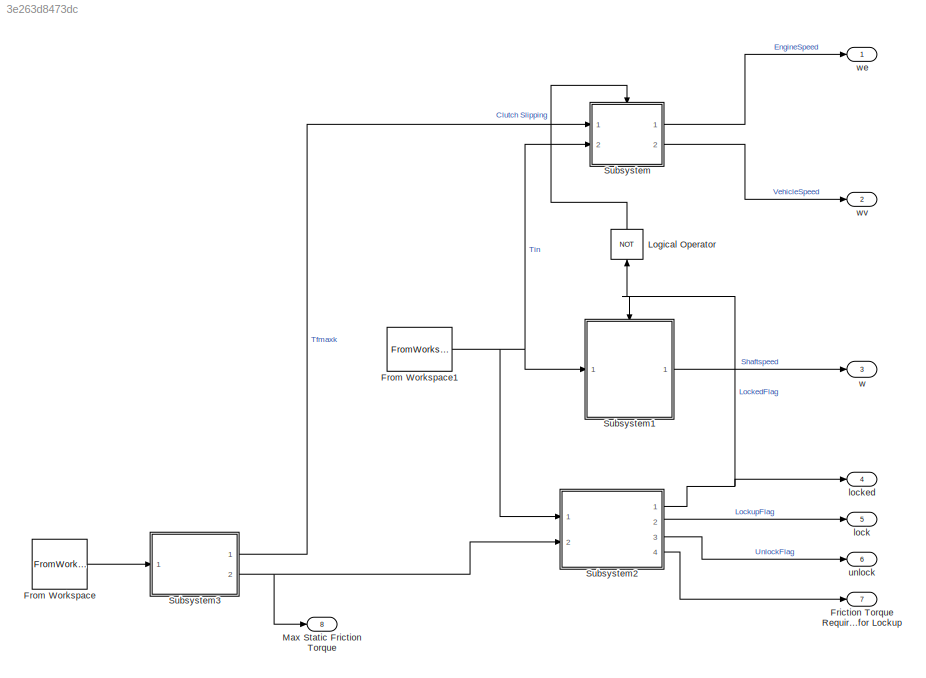
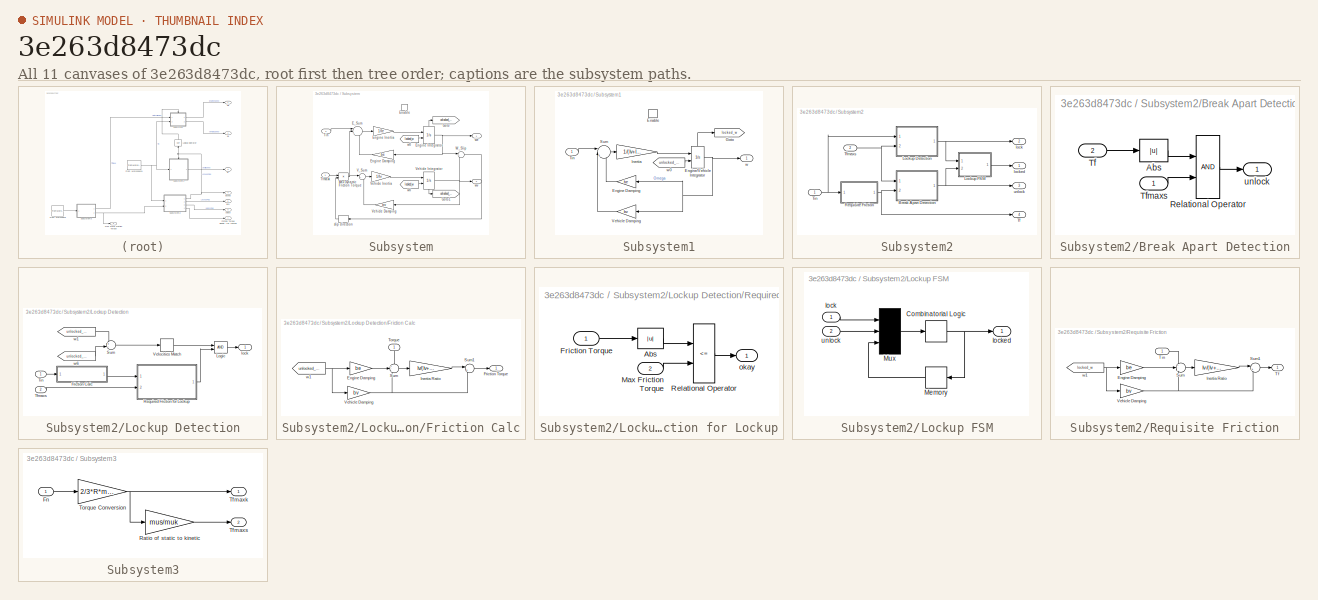
[diagram: thumbnail index - all 11 canvases of the model, root first then tree order]
MODEL slx_3e263d8473dc
KIND model
CONFIG AbsTol = auto
CONFIG EnableMultiTasking = off
CONFIG FixedStep = auto
CONFIG MaxStep = auto
CONFIG MinStep = auto
CONFIG RelTol = 1e-3
CONFIG SampleTimeConstraint = Unconstrained
CONFIG SolverName = VariableStepAuto
CONFIG StartTime = 0.0
CONFIG StopTime = 10.0
BLOCK [Outport] Friction Torque Required for Lockup
  InitialOutput = 0
  Port = 7
  VectorParamsAs1DForOutWhenUnconnected = off
BLOCK [FromWorkspace] From Workspace
  VariableName = Fn
  ZeroCross = off
BLOCK [FromWorkspace] From Workspace1
  VariableName = Tin
  ZeroCross = off
BLOCK [Logic] Logical Operator
  AllPortsSameDT = off
  IconShape = distinctive
  NameLocation = right
  Operator = NOT
  OutDataTypeStr = boolean
  Ports = [1, 1]
BLOCK [Outport] Max Static Friction Torque
  Port = 8
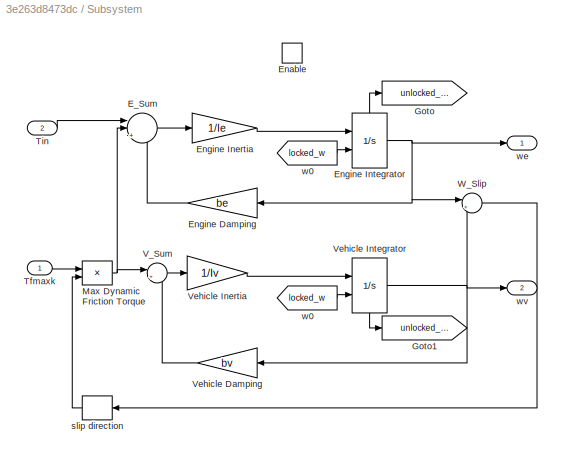
BLOCK [SubSystem] Subsystem
  Ports = [2, 2, 1]
  RequestExecContextInheritance = off
BLOCK [Sum] Subsystem/E_Sum
  InputSameDT = on
  Inputs = ||+--
  NameLocation = top
  OutDataTypeStr = Inherit: Same as first input
  Ports = [3, 1]
  SaturateOnIntegerOverflow = on
BLOCK [EnablePort] Subsystem/Enable
  Ports = []
  StatesWhenEnabling = reset
BLOCK [Gain] Subsystem/Engine Damping
  Gain = be
  OutDataTypeStr = Inherit: Same as input
  ParamDataTypeStr = Inherit: Same as input
  SaturateOnIntegerOverflow = on
BLOCK [Gain] Subsystem/Engine Inertia
  Gain = 1/Ie
  OutDataTypeStr = Inherit: Same as input
  ParamDataTypeStr = Inherit: Same as input
  SaturateOnIntegerOverflow = on
BLOCK [Integrator] Subsystem/Engine Integrator
  InitialConditionSource = external
  Ports = [2, 1, 0, 0, 1]
  ShowStatePort = on
BLOCK [Goto] Subsystem/Goto
  GotoTag = unlocked_we
  TagVisibility = global
BLOCK [Goto] Subsystem/Goto1
  GotoTag = unlocked_wv
  TagVisibility = global
BLOCK [Product] Subsystem/Max Dynamic Friction Torque
  InputSameDT = on
  OutDataTypeStr = Inherit: Same as first input
  Ports = [2, 1]
  RndMeth = Zero
  SaturateOnIntegerOverflow = on
BLOCK [Inport] Subsystem/Tfmaxk
BLOCK [Inport] Subsystem/Tin
  Port = 2
BLOCK [Sum] Subsystem/V_Sum
  InputSameDT = on
  Inputs = |+-
  NameLocation = top
  OutDataTypeStr = Inherit: Same as first input
  Ports = [2, 1]
  SaturateOnIntegerOverflow = on
BLOCK [Gain] Subsystem/Vehicle Damping
  Gain = bv
  OutDataTypeStr = Inherit: Same as input
  ParamDataTypeStr = Inherit: Same as input
  SaturateOnIntegerOverflow = on
BLOCK [Gain] Subsystem/Vehicle Inertia
  Gain = 1/Iv
  OutDataTypeStr = Inherit: Same as input
  ParamDataTypeStr = Inherit: Same as input
  SaturateOnIntegerOverflow = on
BLOCK [Integrator] Subsystem/Vehicle Integrator
  InitialConditionSource = external
  NameLocation = top
  Ports = [2, 1, 0, 0, 1]
  ShowStatePort = on
BLOCK [Sum] Subsystem/W_Slip
  InputSameDT = on
  Inputs = |+-
  NameLocation = top
  OutDataTypeStr = Inherit: Same as first input
  Ports = [2, 1]
  SaturateOnIntegerOverflow = on
BLOCK [Signum] Subsystem/slip direction
BLOCK [From] Subsystem/w0
  GotoTag = locked_w
  TagVisibility = global
BLOCK [From] Subsystem/w0 
  GotoTag = locked_w
  TagVisibility = global
BLOCK [Outport] Subsystem/we
  InitialOutput = 0
  VectorParamsAs1DForOutWhenUnconnected = off
BLOCK [Outport] Subsystem/wv
  InitialOutput = 0
  Port = 2
  VectorParamsAs1DForOutWhenUnconnected = off
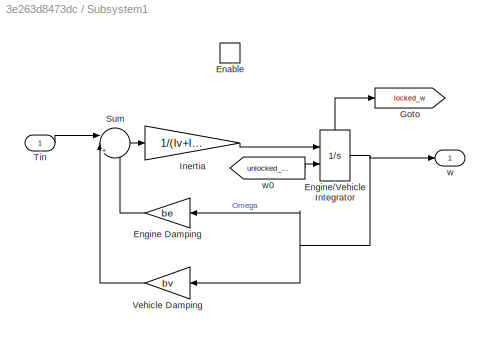
BLOCK [SubSystem] Subsystem1
  Ports = [1, 1, 1]
  RequestExecContextInheritance = off
BLOCK [EnablePort] Subsystem1/Enable
  Ports = []
  StatesWhenEnabling = reset
BLOCK [Gain] Subsystem1/Engine Damping
  Gain = be
  OutDataTypeStr = Inherit: Same as input
  ParamDataTypeStr = Inherit: Same as input
  SaturateOnIntegerOverflow = on
BLOCK [Integrator] Subsystem1/Engine//Vehicle Integrator
  InitialConditionSource = external
  Ports = [2, 1, 0, 0, 1]
  ShowStatePort = on
BLOCK [Goto] Subsystem1/Goto
  GotoTag = locked_w
  NameLocation = top
  TagVisibility = global
BLOCK [Gain] Subsystem1/Inertia
  Gain = 1/(Iv+Ie)
  OutDataTypeStr = Inherit: Same as input
  ParamDataTypeStr = Inherit: Same as input
  SaturateOnIntegerOverflow = on
BLOCK [Sum] Subsystem1/Sum
  InputSameDT = on
  Inputs = ||+--
  OutDataTypeStr = Inherit: Same as first input
  Ports = [3, 1]
  SaturateOnIntegerOverflow = on
BLOCK [Inport] Subsystem1/Tin
BLOCK [Gain] Subsystem1/Vehicle Damping
  Gain = bv
  OutDataTypeStr = Inherit: Same as input
  ParamDataTypeStr = Inherit: Same as input
  SaturateOnIntegerOverflow = on
BLOCK [Outport] Subsystem1/w
  InitialOutput = 0
  VectorParamsAs1DForOutWhenUnconnected = off
BLOCK [From] Subsystem1/w0
  GotoTag = unlocked_we
  TagVisibility = global
BLOCK [SubSystem] Subsystem2
  Ports = [2, 4]
  RequestExecContextInheritance = off
BLOCK [SubSystem] Subsystem2/Break Apart Detection
  Ports = [2, 1]
  RequestExecContextInheritance = off
BLOCK [Abs] Subsystem2/Break Apart Detection/Abs
BLOCK [RelationalOperator] Subsystem2/Break Apart Detection/Relational Operator
  OutDataTypeStr = boolean
  Ports = [2, 1]
BLOCK [Inport] Subsystem2/Break Apart Detection/Tf
  Port = 2
BLOCK [Inport] Subsystem2/Break Apart Detection/Tfmaxs
BLOCK [Outport] Subsystem2/Break Apart Detection/unlock
  InitialOutput = 0
  VectorParamsAs1DForOutWhenUnconnected = off
BLOCK [SubSystem] Subsystem2/Lockup Detection
  Ports = [2, 1]
  RequestExecContextInheritance = off
BLOCK [SubSystem] Subsystem2/Lockup Detection/Friction Calc
  Ports = [1, 1]
  RequestExecContextInheritance = off
BLOCK [Gain] Subsystem2/Lockup Detection/Friction Calc/Engine Damping
  Gain = be
  NameLocation = top
  OutDataTypeStr = Inherit: Same as input
  ParamDataTypeStr = Inherit: Same as input
  SaturateOnIntegerOverflow = on
BLOCK [Outport] Subsystem2/Lockup Detection/Friction Calc/Friction Torque
  InitialOutput = 0
  VectorParamsAs1DForOutWhenUnconnected = off
BLOCK [Gain] Subsystem2/Lockup Detection/Friction Calc/Inertia Ratio
  Gain = Iv/(Iv+Ie)
  OutDataTypeStr = Inherit: Same as input
  ParamDataTypeStr = Inherit: Same as input
  SaturateOnIntegerOverflow = on
BLOCK [Sum] Subsystem2/Lockup Detection/Friction Calc/Sum
  InputSameDT = on
  Inputs = +--
  OutDataTypeStr = Inherit: Same as first input
  Ports = [3, 1]
  SaturateOnIntegerOverflow = on
BLOCK [Sum] Subsystem2/Lockup Detection/Friction Calc/Sum1
  InputSameDT = on
  Inputs = |++
  OutDataTypeStr = Inherit: Same as first input
  Ports = [2, 1]
  SaturateOnIntegerOverflow = on
BLOCK [Inport] Subsystem2/Lockup Detection/Friction Calc/Torque
  NameLocation = left
BLOCK [Gain] Subsystem2/Lockup Detection/Friction Calc/Vehicle Damping
  Gain = bv
  OutDataTypeStr = Inherit: Same as input
  ParamDataTypeStr = Inherit: Same as input
  SaturateOnIntegerOverflow = on
BLOCK [From] Subsystem2/Lockup Detection/Friction Calc/w1
  GotoTag = unlocked_we
  TagVisibility = global
BLOCK [Logic] Subsystem2/Lockup Detection/Logic
  AttributesFormatString = (%<Operator>)
  IconShape = distinctive
  OutDataTypeStr = boolean
  Ports = [2, 1]
BLOCK [SubSystem] Subsystem2/Lockup Detection/Required Friction for Lockup
  Ports = [2, 1]
  RequestExecContextInheritance = off
BLOCK [Abs] Subsystem2/Lockup Detection/Required Friction for Lockup/Abs
BLOCK [Inport] Subsystem2/Lockup Detection/Required Friction for Lockup/Friction Torque
BLOCK [Inport] Subsystem2/Lockup Detection/Required Friction for Lockup/Max Friction Torque
  Port = 2
BLOCK [RelationalOperator] Subsystem2/Lockup Detection/Required Friction for Lockup/Relational Operator
  Operator = <=
  OutDataTypeStr = boolean
  Ports = [2, 1]
BLOCK [Outport] Subsystem2/Lockup Detection/Required Friction for Lockup/okay
  InitialOutput = 0
  VectorParamsAs1DForOutWhenUnconnected = off
BLOCK [Sum] Subsystem2/Lockup Detection/Sum
  InputSameDT = on
  Inputs = +-
  OutDataTypeStr = Inherit: Same as first input
  Ports = [2, 1]
  SaturateOnIntegerOverflow = on
BLOCK [Inport] Subsystem2/Lockup Detection/Tfmaxs
  Port = 2
BLOCK [Inport] Subsystem2/Lockup Detection/Tin
BLOCK [HitCross] Subsystem2/Lockup Detection/Velocities Match
  Ports = [1, 1]
BLOCK [Outport] Subsystem2/Lockup Detection/lock
  InitialOutput = 0
  VectorParamsAs1DForOutWhenUnconnected = off
BLOCK [From] Subsystem2/Lockup Detection/w1
  GotoTag = unlocked_we
  TagVisibility = global
BLOCK [From] Subsystem2/Lockup Detection/w6
  GotoTag = unlocked_wv
  TagVisibility = global
BLOCK [SubSystem] Subsystem2/Lockup FSM
  Ports = [2, 1]
  RequestExecContextInheritance = off
BLOCK [CombinatorialLogic] Subsystem2/Lockup FSM/Combinatorial Logic
  TruthTable = [0;1;0;0;1;1;1;0]
BLOCK [Memory] Subsystem2/Lockup FSM/Memory
BLOCK [Mux] Subsystem2/Lockup FSM/Mux
  Inputs = 3
  Ports = [3, 1]
BLOCK [Inport] Subsystem2/Lockup FSM/lock
  NameLocation = top
BLOCK [Outport] Subsystem2/Lockup FSM/locked
  InitialOutput = 0
  VectorParamsAs1DForOutWhenUnconnected = off
BLOCK [Inport] Subsystem2/Lockup FSM/unlock
  Port = 2
BLOCK [SubSystem] Subsystem2/Requisite Friction
  Ports = [1, 1]
  RequestExecContextInheritance = off
BLOCK [Gain] Subsystem2/Requisite Friction/Engine Damping
  Gain = be
  NameLocation = top
  OutDataTypeStr = Inherit: Same as input
  ParamDataTypeStr = Inherit: Same as input
  SaturateOnIntegerOverflow = on
BLOCK [Gain] Subsystem2/Requisite Friction/Inertia Ratio
  Gain = Iv/(Iv+Ie)
  OutDataTypeStr = Inherit: Same as input
  ParamDataTypeStr = Inherit: Same as input
  SaturateOnIntegerOverflow = on
BLOCK [Sum] Subsystem2/Requisite Friction/Sum
  InputSameDT = on
  Inputs = +--
  OutDataTypeStr = Inherit: Same as first input
  Ports = [3, 1]
  SaturateOnIntegerOverflow = on
BLOCK [Sum] Subsystem2/Requisite Friction/Sum1
  InputSameDT = on
  Inputs = |++
  OutDataTypeStr = Inherit: Same as first input
  Ports = [2, 1]
  SaturateOnIntegerOverflow = on
BLOCK [Outport] Subsystem2/Requisite Friction/Tf
  InitialOutput = 0
  VectorParamsAs1DForOutWhenUnconnected = off
BLOCK [Inport] Subsystem2/Requisite Friction/Tin
BLOCK [Gain] Subsystem2/Requisite Friction/Vehicle Damping
  Gain = bv
  OutDataTypeStr = Inherit: Same as input
  ParamDataTypeStr = Inherit: Same as input
  SaturateOnIntegerOverflow = on
BLOCK [From] Subsystem2/Requisite Friction/w1
  GotoTag = locked_w
  NameLocation = top
  TagVisibility = global
BLOCK [Outport] Subsystem2/Tf
  InitialOutput = 0
  Port = 4
  VectorParamsAs1DForOutWhenUnconnected = off
BLOCK [Inport] Subsystem2/Tfmaxs
  Port = 2
BLOCK [Inport] Subsystem2/Tin
BLOCK [Outport] Subsystem2/lock
  InitialOutput = 0
  Port = 2
  VectorParamsAs1DForOutWhenUnconnected = off
BLOCK [Outport] Subsystem2/locked
  InitialOutput = 0
  VectorParamsAs1DForOutWhenUnconnected = off
BLOCK [Outport] Subsystem2/unlock
  InitialOutput = 0
  Port = 3
  VectorParamsAs1DForOutWhenUnconnected = off
BLOCK [SubSystem] Subsystem3
  Ports = [1, 2]
  RequestExecContextInheritance = off
BLOCK [Inport] Subsystem3/Fn
BLOCK [Gain] Subsystem3/Ratio of static to kinetic
  Gain = mus/muk
  OutDataTypeStr = Inherit: Same as input
  ParamDataTypeStr = Inherit: Same as input
  SaturateOnIntegerOverflow = on
BLOCK [Outport] Subsystem3/Tfmaxk
  InitialOutput = 0
  VectorParamsAs1DForOutWhenUnconnected = off
BLOCK [Outport] Subsystem3/Tfmaxs
  InitialOutput = 0
  Port = 2
  VectorParamsAs1DForOutWhenUnconnected = off
BLOCK [Gain] Subsystem3/Torque Conversion
  Gain = 2/3*R*muk
  OutDataTypeStr = Inherit: Same as input
  ParamDataTypeStr = Inherit: Same as input
  SaturateOnIntegerOverflow = on
BLOCK [Outport] lock
  InitialOutput = 0
  Port = 5
  VectorParamsAs1DForOutWhenUnconnected = off
BLOCK [Outport] locked
  InitialOutput = 0
  Port = 4
  VectorParamsAs1DForOutWhenUnconnected = off
BLOCK [Outport] unlock
  InitialOutput = 0
  Port = 6
  VectorParamsAs1DForOutWhenUnconnected = off
BLOCK [Outport] w
  InitialOutput = 0
  Port = 3
  VectorParamsAs1DForOutWhenUnconnected = off
BLOCK [Outport] we
  InitialOutput = 0
  VectorParamsAs1DForOutWhenUnconnected = off
BLOCK [Outport] wv
  InitialOutput = 0
  Port = 2
  VectorParamsAs1DForOutWhenUnconnected = off
NET From Workspace1:1 -> Subsystem1:1, Subsystem2:1, Subsystem:2
LINE From Workspace:1 -> Subsystem3:1
LINE Logical Operator:1 -> Subsystem:enable
LINE Subsystem/E_Sum:1 -> Subsystem/Engine Inertia:1
LINE Subsystem/Engine Damping:1 -> Subsystem/E_Sum:3
LINE Subsystem/Engine Inertia:1 -> Subsystem/Engine Integrator:1
NET Subsystem/Engine Integrator:1 -> Subsystem/Engine Damping:1, Subsystem/W_Slip:1, Subsystem/we:1
LINE Subsystem/Engine Integrator:state -> Subsystem/Goto:1
NET Subsystem/Max Dynamic Friction Torque:1 -> Subsystem/E_Sum:2, Subsystem/V_Sum:1
LINE Subsystem/Tfmaxk:1 -> Subsystem/Max Dynamic Friction Torque:1
LINE Subsystem/Tin:1 -> Subsystem/E_Sum:1
LINE Subsystem/V_Sum:1 -> Subsystem/Vehicle Inertia:1
LINE Subsystem/Vehicle Damping:1 -> Subsystem/V_Sum:2
LINE Subsystem/Vehicle Inertia:1 -> Subsystem/Vehicle Integrator:1
NET Subsystem/Vehicle Integrator:1 -> Subsystem/Vehicle Damping:1, Subsystem/W_Slip:2, Subsystem/wv:1
LINE Subsystem/Vehicle Integrator:state -> Subsystem/Goto1:1
LINE Subsystem/W_Slip:1 -> Subsystem/slip direction:1
LINE Subsystem/slip direction:1 -> Subsystem/Max Dynamic Friction Torque:2
LINE Subsystem/w0 :1 -> Subsystem/Engine Integrator:2
LINE Subsystem/w0:1 -> Subsystem/Vehicle Integrator:2
LINE Subsystem1/Engine Damping:1 -> Subsystem1/Sum:3
NET Subsystem1/Engine//Vehicle Integrator:1 -> Subsystem1/Engine Damping:1, Subsystem1/Vehicle Damping:1, Subsystem1/w:1
LINE Subsystem1/Engine//Vehicle Integrator:state -> Subsystem1/Goto:1
LINE Subsystem1/Inertia:1 -> Subsystem1/Engine//Vehicle Integrator:1
LINE Subsystem1/Sum:1 -> Subsystem1/Inertia:1
LINE Subsystem1/Tin:1 -> Subsystem1/Sum:1
LINE Subsystem1/Vehicle Damping:1 -> Subsystem1/Sum:2
LINE Subsystem1/w0:1 -> Subsystem1/Engine//Vehicle Integrator:2
LINE Subsystem1:1 -> w:1
LINE Subsystem2/Break Apart Detection/Abs:1 -> Subsystem2/Break Apart Detection/Relational Operator:1
LINE Subsystem2/Break Apart Detection/Relational Operator:1 -> Subsystem2/Break Apart Detection/unlock:1
LINE Subsystem2/Break Apart Detection/Tf:1 -> Subsystem2/Break Apart Detection/Abs:1
LINE Subsystem2/Break Apart Detection/Tfmaxs:1 -> Subsystem2/Break Apart Detection/Relational Operator:2
NET Subsystem2/Break Apart Detection:1 -> Subsystem2/Lockup FSM:2, Subsystem2/unlock:1
LINE Subsystem2/Lockup Detection/Friction Calc/Engine Damping:1 -> Subsystem2/Lockup Detection/Friction Calc/Sum:2
LINE Subsystem2/Lockup Detection/Friction Calc/Inertia Ratio:1 -> Subsystem2/Lockup Detection/Friction Calc/Sum1:1
LINE Subsystem2/Lockup Detection/Friction Calc/Sum1:1 -> Subsystem2/Lockup Detection/Friction Calc/Friction Torque:1
LINE Subsystem2/Lockup Detection/Friction Calc/Sum:1 -> Subsystem2/Lockup Detection/Friction Calc/Inertia Ratio:1
LINE Subsystem2/Lockup Detection/Friction Calc/Torque:1 -> Subsystem2/Lockup Detection/Friction Calc/Sum:1
NET Subsystem2/Lockup Detection/Friction Calc/Vehicle Damping:1 -> Subsystem2/Lockup Detection/Friction Calc/Sum1:2, Subsystem2/Lockup Detection/Friction Calc/Sum:3
NET Subsystem2/Lockup Detection/Friction Calc/w1:1 -> Subsystem2/Lockup Detection/Friction Calc/Engine Damping:1, Subsystem2/Lockup Detection/Friction Calc/Vehicle Damping:1
LINE Subsystem2/Lockup Detection/Friction Calc:1 -> Subsystem2/Lockup Detection/Required Friction for Lockup:1
LINE Subsystem2/Lockup Detection/Logic:1 -> Subsystem2/Lockup Detection/lock:1
LINE Subsystem2/Lockup Detection/Required Friction for Lockup/Abs:1 -> Subsystem2/Lockup Detection/Required Friction for Lockup/Relational Operator:1
LINE Subsystem2/Lockup Detection/Required Friction for Lockup/Friction Torque:1 -> Subsystem2/Lockup Detection/Required Friction for Lockup/Abs:1
LINE Subsystem2/Lockup Detection/Required Friction for Lockup/Max Friction Torque:1 -> Subsystem2/Lockup Detection/Required Friction for Lockup/Relational Operator:2
LINE Subsystem2/Lockup Detection/Required Friction for Lockup/Relational Operator:1 -> Subsystem2/Lockup Detection/Required Friction for Lockup/okay:1
LINE Subsystem2/Lockup Detection/Required Friction for Lockup:1 -> Subsystem2/Lockup Detection/Logic:2
LINE Subsystem2/Lockup Detection/Sum:1 -> Subsystem2/Lockup Detection/Velocities Match:1
LINE Subsystem2/Lockup Detection/Tfmaxs:1 -> Subsystem2/Lockup Detection/Required Friction for Lockup:2
LINE Subsystem2/Lockup Detection/Tin:1 -> Subsystem2/Lockup Detection/Friction Calc:1
LINE Subsystem2/Lockup Detection/Velocities Match:1 -> Subsystem2/Lockup Detection/Logic:1
LINE Subsystem2/Lockup Detection/w1:1 -> Subsystem2/Lockup Detection/Sum:1
LINE Subsystem2/Lockup Detection/w6:1 -> Subsystem2/Lockup Detection/Sum:2
NET Subsystem2/Lockup Detection:1 -> Subsystem2/Lockup FSM:1, Subsystem2/lock:1
NET Subsystem2/Lockup FSM/Combinatorial Logic:1 -> Subsystem2/Lockup FSM/Memory:1, Subsystem2/Lockup FSM/locked:1
LINE Subsystem2/Lockup FSM/Memory:1 -> Subsystem2/Lockup FSM/Mux:3
LINE Subsystem2/Lockup FSM/Mux:1 -> Subsystem2/Lockup FSM/Combinatorial Logic:1
LINE Subsystem2/Lockup FSM/lock:1 -> Subsystem2/Lockup FSM/Mux:1
LINE Subsystem2/Lockup FSM/unlock:1 -> Subsystem2/Lockup FSM/Mux:2
LINE Subsystem2/Lockup FSM:1 -> Subsystem2/locked:1
LINE Subsystem2/Requisite Friction/Engine Damping:1 -> Subsystem2/Requisite Friction/Sum:2
LINE Subsystem2/Requisite Friction/Inertia Ratio:1 -> Subsystem2/Requisite Friction/Sum1:1
LINE Subsystem2/Requisite Friction/Sum1:1 -> Subsystem2/Requisite Friction/Tf:1
LINE Subsystem2/Requisite Friction/Sum:1 -> Subsystem2/Requisite Friction/Inertia Ratio:1
LINE Subsystem2/Requisite Friction/Tin:1 -> Subsystem2/Requisite Friction/Sum:1
NET Subsystem2/Requisite Friction/Vehicle Damping:1 -> Subsystem2/Requisite Friction/Sum1:2, Subsystem2/Requisite Friction/Sum:3
NET Subsystem2/Requisite Friction/w1:1 -> Subsystem2/Requisite Friction/Engine Damping:1, Subsystem2/Requisite Friction/Vehicle Damping:1
NET Subsystem2/Requisite Friction:1 -> Subsystem2/Break Apart Detection:2, Subsystem2/Tf:1
NET Subsystem2/Tfmaxs:1 -> Subsystem2/Break Apart Detection:1, Subsystem2/Lockup Detection:2
NET Subsystem2/Tin:1 -> Subsystem2/Lockup Detection:1, Subsystem2/Requisite Friction:1
NET Subsystem2:1 -> Logical Operator:1, Subsystem1:enable, locked:1
LINE Subsystem2:2 -> lock:1
LINE Subsystem2:3 -> unlock:1
LINE Subsystem2:4 -> Friction Torque Required for Lockup:1
LINE Subsystem3/Fn:1 -> Subsystem3/Torque Conversion:1
LINE Subsystem3/Ratio of static to kinetic:1 -> Subsystem3/Tfmaxs:1
NET Subsystem3/Torque Conversion:1 -> Subsystem3/Ratio of static to kinetic:1, Subsystem3/Tfmaxk:1
LINE Subsystem3:1 -> Subsystem:1
NET Subsystem3:2 -> Max Static Friction Torque:1, Subsystem2:2
LINE Subsystem:1 -> we:1
LINE Subsystem:2 -> wv:1
note: NET lines group one-source signal fan-out (src -> all destinations, sorted); 1:1 wires keep LINE
